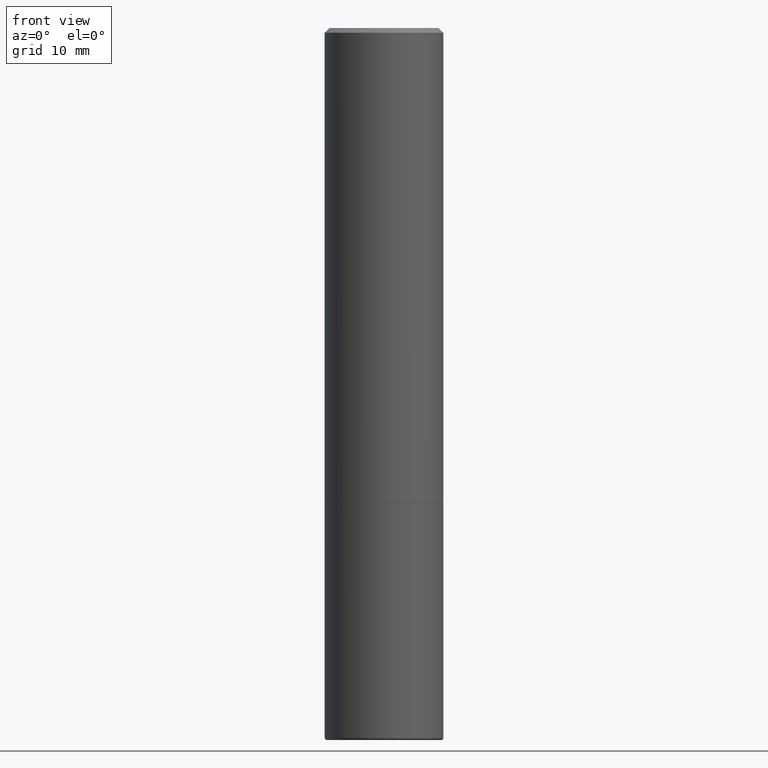
[diagram: clean part render]
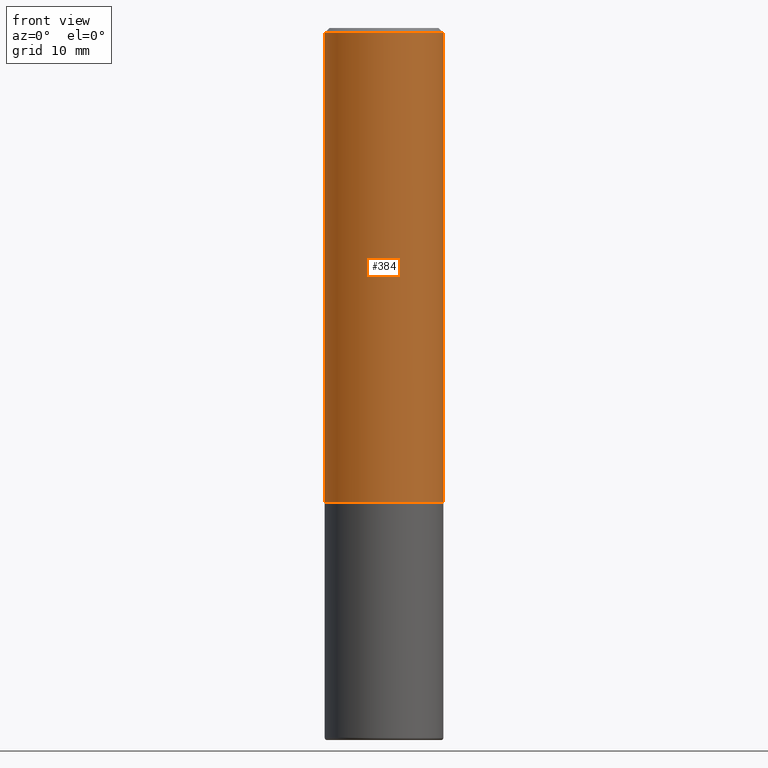
[diagram: same view with one face highlighted and labeled with its STEP entity id]
A machine part, front view. The second image highlights one B-rep face of the part: STEP entity #384.
In plain terms, the highlighted cylindrical surface (partial cylindrical patch) has radius 6.35 mm, axis along (-0, 0, 1).
Its self-contained STEP definition (entity closure, byte-faithful):
#8 = CARTESIAN_POINT ( 'NONE',  ( 0.2500000000000002220, -8.725211865769017202E-15, -1.999000000000000110 ) ) ;
#23 = CIRCLE ( 'NONE', #261, 0.2500000000000000000 ) ;
#26 = LINE ( 'NONE', #126, #73 ) ;
#28 = CARTESIAN_POINT ( 'NONE',  ( -0.2500000000000001110, 1.776356839400251254E-15, -1.229733772563727146E-29 ) ) ;
#30 = VERTEX_POINT ( 'NONE', #328 ) ;
#31 = DIRECTION ( 'NONE',  ( -2.445468806185136597E-29, 3.491481338843145583E-15, 1.000000000000000000 ) ) ;
#41 = AXIS2_PLACEMENT_3D ( 'NONE', #278, #405, #376 ) ;
#43 = CARTESIAN_POINT ( 'NONE',  ( -0.2500000000000002220, -1.748293572161901516E-15, -1.999000000000000110 ) ) ;
#50 = DIRECTION ( 'NONE',  ( -2.445468806185136597E-29, 3.491481338843145583E-15, 1.000000000000000000 ) ) ;
#60 = FACE_OUTER_BOUND ( 'NONE', #284, .T. ) ;
#73 = VECTOR ( 'NONE', #289, 39.37007874015748143 ) ;
#82 = VERTEX_POINT ( 'NONE', #8 ) ;
#103 = AXIS2_PLACEMENT_3D ( 'NONE', #321, #31, #163 ) ;
#126 = CARTESIAN_POINT ( 'NONE',  ( 0.2500000000000001110, -1.745740669421567664E-15, 1.219044193948984649E-29 ) ) ;
#151 = DIRECTION ( 'NONE',  ( 1.000000000000000000, -6.982962677686266711E-15, 0.000000000000000000 ) ) ;
#163 = DIRECTION ( 'NONE',  ( 1.000000000000000000, -6.982962677686267499E-15, 4.876176775795936353E-29 ) ) ;
#178 = CARTESIAN_POINT ( 'NONE',  ( -0.2500000000000000000, 1.675911042644703577E-15, -0.02000000000000005593 ) ) ;
#182 = EDGE_CURVE ( 'NONE', #403, #82, #222, .T. ) ;
#190 = CYLINDRICAL_SURFACE ( 'NONE', #103, 0.2500000000000001110 ) ;
#212 = ORIENTED_EDGE ( 'NONE', *, *, #315, .F. ) ;
#216 = CARTESIAN_POINT ( 'NONE',  ( 4.890937612370287172E-31, -6.982962677686310098E-17, -0.02000000000000005593 ) ) ;
#217 = VECTOR ( 'NONE', #381, 39.37007874015748143 ) ;
#219 = EDGE_CURVE ( 'NONE', #228, #30, #23, .T. ) ;
#222 = CIRCLE ( 'NONE', #41, 0.2500000000000002220 ) ;
#228 = VERTEX_POINT ( 'NONE', #178 ) ;
#239 = ORIENTED_EDGE ( 'NONE', *, *, #219, .F. ) ;
#257 = LINE ( 'NONE', #28, #217 ) ;
#261 = AXIS2_PLACEMENT_3D ( 'NONE', #216, #50, #151 ) ;
#275 = EDGE_CURVE ( 'NONE', #82, #30, #26, .T. ) ;
#278 = CARTESIAN_POINT ( 'NONE',  ( 4.888492143564088712E-29, -6.979471196347448158E-15, -1.999000000000000110 ) ) ;
#284 = EDGE_LOOP ( 'NONE', ( #212, #322, #367, #239 ) ) ;
#289 = DIRECTION ( 'NONE',  ( -2.445468806185136877E-29, 3.491481338843145188E-15, 1.000000000000000000 ) ) ;
#315 = EDGE_CURVE ( 'NONE', #403, #228, #257, .T. ) ;
#321 = CARTESIAN_POINT ( 'NONE',  ( 0.000000000000000000, 0.000000000000000000, 0.000000000000000000 ) ) ;
#322 = ORIENTED_EDGE ( 'NONE', *, *, #182, .T. ) ;
#328 = CARTESIAN_POINT ( 'NONE',  ( 0.2500000000000000000, -1.784954126219746189E-15, -0.02000000000000005593 ) ) ;
#367 = ORIENTED_EDGE ( 'NONE', *, *, #275, .T. ) ;
#376 = DIRECTION ( 'NONE',  ( 1.000000000000000000, -6.982962677686268288E-15, 0.000000000000000000 ) ) ;
#381 = DIRECTION ( 'NONE',  ( -2.445468806185136877E-29, 3.491481338843145188E-15, 1.000000000000000000 ) ) ;
#384 = ADVANCED_FACE ( 'NONE', ( #60 ), #190, .T. ) ;
#403 = VERTEX_POINT ( 'NONE', #43 ) ;
#405 = DIRECTION ( 'NONE',  ( -2.445468806185136597E-29, 3.491481338843145583E-15, 1.000000000000000000 ) ) ;